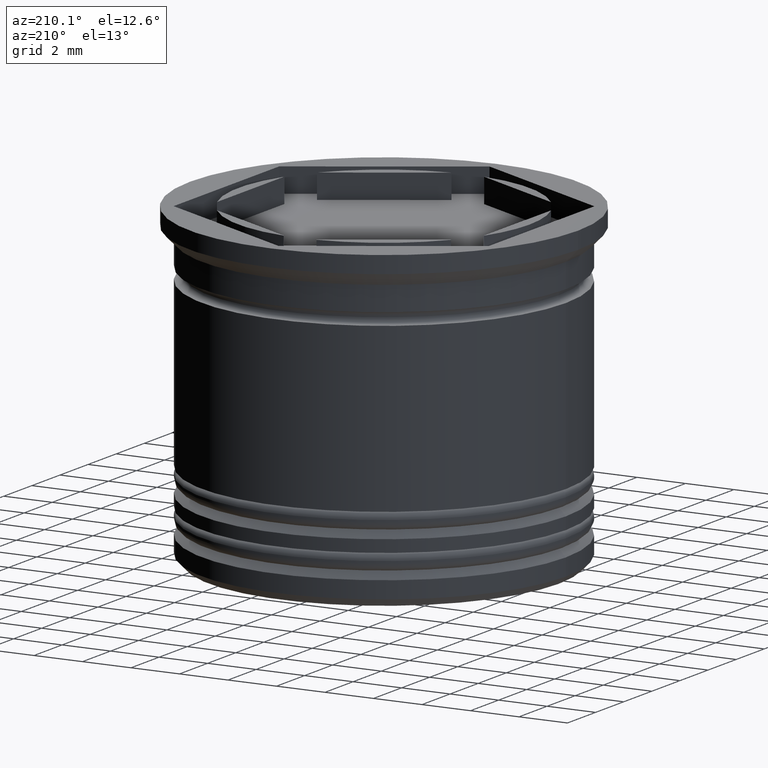
[diagram: clean part render]
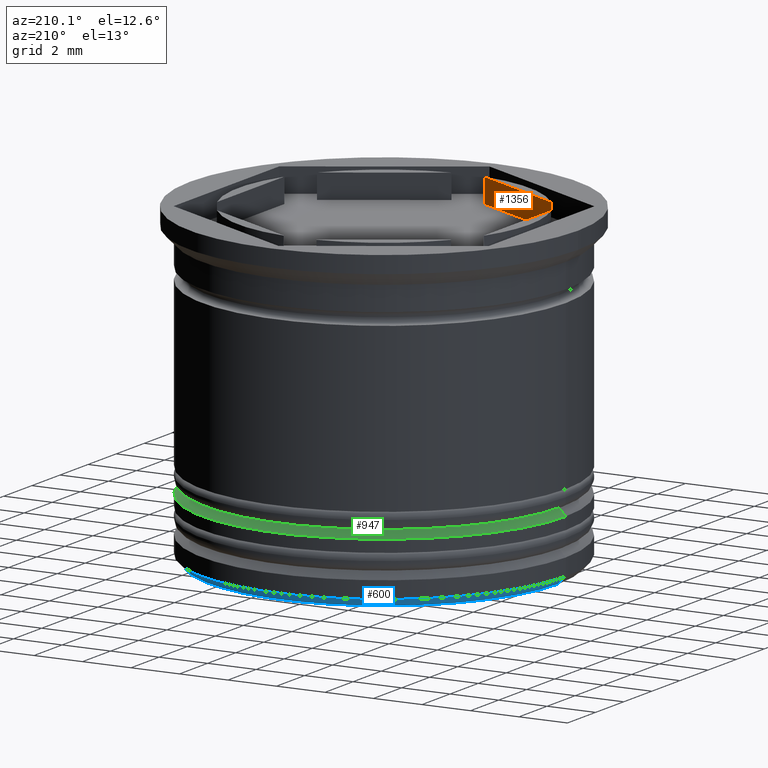
[diagram: same view with three faces highlighted in distinct colors, each labeled with its STEP entity id]
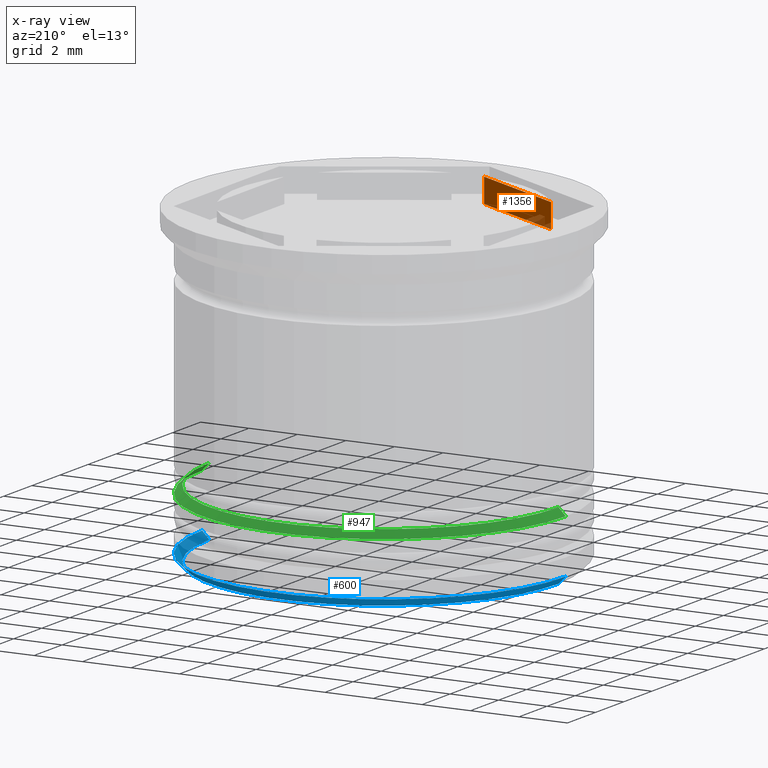
[diagram: x-ray of the same camera — body ghosted, the three highlighted faces saturated]
A machine part, auxiliary view with three faces highlighted in distinct colors.
The next image is the same camera in x-ray (body ghosted, the three faces saturated) — at least one of them is partly hidden behind the body in this view.
Their STEP definitions:

[orange] entity #1356 — the highlighted planar face has unit normal (-0.5, -0.866, 0).
#15 = VECTOR ( 'NONE', #32, 1000.000000000000000 ) ;
#32 = DIRECTION ( 'NONE',  ( 0.000000000000000000, 0.000000000000000000, 1.000000000000000000 ) ) ;
#44 = ORIENTED_EDGE ( 'NONE', *, *, #1899, .F. ) ;
#46 = EDGE_CURVE ( 'NONE', #244, #1669, #163, .T. ) ;
#49 = DIRECTION ( 'NONE',  ( 0.8660254037844385966, -0.5000000000000000000, 0.000000000000000000 ) ) ;
#163 = LINE ( 'NONE', #1252, #1038 ) ;
#192 = ORIENTED_EDGE ( 'NONE', *, *, #46, .T. ) ;
#196 = VECTOR ( 'NONE', #1445, 1000.000000000000000 ) ;
#244 = VERTEX_POINT ( 'NONE', #686 ) ;
#251 = EDGE_LOOP ( 'NONE', ( #192, #980, #1854, #44 ) ) ;
#351 = CARTESIAN_POINT ( 'NONE',  ( -4.826655965729519160, -3.564181839986234390, 16.97056274847714263 ) ) ;
#356 = EDGE_CURVE ( 'NONE', #1936, #1669, #1566, .T. ) ;
#430 = CARTESIAN_POINT ( 'NONE',  ( -5.500000000000001776, -3.175426480542942631, -1.000000000000000888 ) ) ;
#435 = VECTOR ( 'NONE', #853, 999.9999999999998863 ) ;
#498 = LINE ( 'NONE', #351, #196 ) ;
#597 = DIRECTION ( 'NONE',  ( 0.8660254037844387076, -0.5000000000000001110, 0.000000000000000000 ) ) ;
#686 = CARTESIAN_POINT ( 'NONE',  ( -4.826655965729518272, -3.564181839986234834, 0.000000000000000000 ) ) ;
#834 = AXIS2_PLACEMENT_3D ( 'NONE', #1738, #952, #49 ) ;
#853 = DIRECTION ( 'NONE',  ( -0.8660254037844387076, 0.5000000000000001110, 0.000000000000000000 ) ) ;
#952 = DIRECTION ( 'NONE',  ( -0.5000000000000001110, -0.8660254037844387076, 0.000000000000000000 ) ) ;
#980 = ORIENTED_EDGE ( 'NONE', *, *, #356, .F. ) ;
#1038 = VECTOR ( 'NONE', #597, 999.9999999999998863 ) ;
#1097 = CARTESIAN_POINT ( 'NONE',  ( -0.6733440342704841708, -5.962097601642594391, -1.000000000000000888 ) ) ;
#1117 = PLANE ( 'NONE',  #834 ) ;
#1121 = EDGE_CURVE ( 'NONE', #1936, #1770, #1811, .T. ) ;
#1154 = CARTESIAN_POINT ( 'NONE',  ( -4.826655965729519160, -3.564181839986236611, -1.000000000000000888 ) ) ;
#1252 = CARTESIAN_POINT ( 'NONE',  ( -2.750000000000000888, -4.763139720814414169, 0.000000000000000000 ) ) ;
#1266 = CARTESIAN_POINT ( 'NONE',  ( -0.6733440342704825055, -5.962097601642592615, 16.97056274847714263 ) ) ;
#1356 = ADVANCED_FACE ( 'NONE', ( #1599 ), #1117, .F. ) ;
#1445 = DIRECTION ( 'NONE',  ( -0.000000000000000000, -0.000000000000000000, -1.000000000000000000 ) ) ;
#1566 = LINE ( 'NONE', #1266, #15 ) ;
#1599 = FACE_OUTER_BOUND ( 'NONE', #251, .T. ) ;
#1669 = VERTEX_POINT ( 'NONE', #1835 ) ;
#1738 = CARTESIAN_POINT ( 'NONE',  ( -5.500000000000001776, -3.175426480542942631, -17.80277754817141656 ) ) ;
#1770 = VERTEX_POINT ( 'NONE', #1154 ) ;
#1811 = LINE ( 'NONE', #430, #435 ) ;
#1835 = CARTESIAN_POINT ( 'NONE',  ( -0.6733440342704833936, -5.962097601642592615, 0.000000000000000000 ) ) ;
#1854 = ORIENTED_EDGE ( 'NONE', *, *, #1121, .T. ) ;
#1899 = EDGE_CURVE ( 'NONE', #244, #1770, #498, .T. ) ;
#1936 = VERTEX_POINT ( 'NONE', #1097 ) ;

[blue] entity #600 — the highlighted conical surface has half-angle 45 deg.
#37 = CARTESIAN_POINT ( 'NONE',  ( 7.500000000000000888, 0.000000000000000000, -12.70000000000000284 ) ) ;
#43 = CARTESIAN_POINT ( 'NONE',  ( 0.000000000000000000, 0.000000000000000000, -13.00000000000000178 ) ) ;
#61 = DIRECTION ( 'NONE',  ( -0.000000000000000000, -0.000000000000000000, 1.000000000000000000 ) ) ;
#180 = ORIENTED_EDGE ( 'NONE', *, *, #1495, .F. ) ;
#225 = VERTEX_POINT ( 'NONE', #1588 ) ;
#267 = VECTOR ( 'NONE', #1570, 1000.000000000000000 ) ;
#269 = AXIS2_PLACEMENT_3D ( 'NONE', #43, #651, #502 ) ;
#343 = LINE ( 'NONE', #37, #267 ) ;
#366 = CONICAL_SURFACE ( 'NONE', #715, 7.500000000000000888, 0.7853981633974554954 ) ;
#375 = LINE ( 'NONE', #1965, #1908 ) ;
#380 = CARTESIAN_POINT ( 'NONE',  ( 0.000000000000000000, 0.000000000000000000, -12.70000000000000284 ) ) ;
#406 = EDGE_CURVE ( 'NONE', #661, #685, #907, .T. ) ;
#465 = DIRECTION ( 'NONE',  ( 1.000000000000000000, 0.000000000000000000, 0.000000000000000000 ) ) ;
#502 = DIRECTION ( 'NONE',  ( -1.000000000000000000, 0.000000000000000000, 0.000000000000000000 ) ) ;
#525 = EDGE_CURVE ( 'NONE', #661, #1372, #375, .T. ) ;
#567 = DIRECTION ( 'NONE',  ( -0.7071067811865526798, 8.659560562354995721E-17, 0.7071067811865424657 ) ) ;
#600 = ADVANCED_FACE ( 'NONE', ( #767 ), #366, .T. ) ;
#643 = CIRCLE ( 'NONE', #1790, 7.500000000000000888 ) ;
#651 = DIRECTION ( 'NONE',  ( 0.000000000000000000, 0.000000000000000000, -1.000000000000000000 ) ) ;
#661 = VERTEX_POINT ( 'NONE', #1223 ) ;
#685 = VERTEX_POINT ( 'NONE', #901 ) ;
#697 = EDGE_LOOP ( 'NONE', ( #912, #1009, #180, #1168 ) ) ;
#715 = AXIS2_PLACEMENT_3D ( 'NONE', #1410, #1694, #465 ) ;
#767 = FACE_OUTER_BOUND ( 'NONE', #697, .T. ) ;
#901 = CARTESIAN_POINT ( 'NONE',  ( 7.199999999999998401, 0.000000000000000000, -13.00000000000000178 ) ) ;
#907 = CIRCLE ( 'NONE', #269, 7.199999999999998401 ) ;
#912 = ORIENTED_EDGE ( 'NONE', *, *, #406, .F. ) ;
#989 = DIRECTION ( 'NONE',  ( -1.000000000000000000, 0.000000000000000000, 0.000000000000000000 ) ) ;
#1009 = ORIENTED_EDGE ( 'NONE', *, *, #525, .T. ) ;
#1168 = ORIENTED_EDGE ( 'NONE', *, *, #1863, .F. ) ;
#1223 = CARTESIAN_POINT ( 'NONE',  ( -7.199999999999998401, 9.001153973733045617E-16, -13.00000000000000178 ) ) ;
#1372 = VERTEX_POINT ( 'NONE', #1747 ) ;
#1410 = CARTESIAN_POINT ( 'NONE',  ( 0.000000000000000000, 0.000000000000000000, -12.70000000000000284 ) ) ;
#1495 = EDGE_CURVE ( 'NONE', #225, #1372, #643, .T. ) ;
#1570 = DIRECTION ( 'NONE',  ( 0.7071067811865526798, 0.000000000000000000, 0.7071067811865424657 ) ) ;
#1588 = CARTESIAN_POINT ( 'NONE',  ( 7.500000000000000888, 0.000000000000000000, -12.70000000000000284 ) ) ;
#1694 = DIRECTION ( 'NONE',  ( -0.000000000000000000, -0.000000000000000000, 1.000000000000000000 ) ) ;
#1747 = CARTESIAN_POINT ( 'NONE',  ( -7.500000000000000888, 9.184850993605149917E-16, -12.70000000000000284 ) ) ;
#1790 = AXIS2_PLACEMENT_3D ( 'NONE', #380, #61, #989 ) ;
#1863 = EDGE_CURVE ( 'NONE', #685, #225, #343, .T. ) ;
#1908 = VECTOR ( 'NONE', #567, 1000.000000000000000 ) ;
#1965 = CARTESIAN_POINT ( 'NONE',  ( -7.500000000000000888, 9.184850993605149917E-16, -12.70000000000000284 ) ) ;

[green] entity #947 — the highlighted conical surface has half-angle 45 deg.
#85 = ORIENTED_EDGE ( 'NONE', *, *, #794, .F. ) ;
#102 = ORIENTED_EDGE ( 'NONE', *, *, #822, .F. ) ;
#110 = CARTESIAN_POINT ( 'NONE',  ( -6.999999999999992006, 0.000000000000000000, -10.00000000000000000 ) ) ;
#170 = CIRCLE ( 'NONE', #1312, 7.200000000000000178 ) ;
#222 = VERTEX_POINT ( 'NONE', #650 ) ;
#413 = DIRECTION ( 'NONE',  ( -0.000000000000000000, -0.000000000000000000, 1.000000000000000000 ) ) ;
#442 = CARTESIAN_POINT ( 'NONE',  ( 0.000000000000000000, 0.000000000000000000, -10.00000000000000000 ) ) ;
#519 = LINE ( 'NONE', #1761, #1978 ) ;
#547 = CONICAL_SURFACE ( 'NONE', #1135, 6.999999999999992006, 0.7853981633974533860 ) ;
#564 = CARTESIAN_POINT ( 'NONE',  ( 0.000000000000000000, 0.000000000000000000, -10.20000000000000639 ) ) ;
#614 = AXIS2_PLACEMENT_3D ( 'NONE', #1419, #1453, #1888 ) ;
#650 = CARTESIAN_POINT ( 'NONE',  ( 7.200000000000000178, 0.000000000000000000, -10.20000000000000639 ) ) ;
#652 = ORIENTED_EDGE ( 'NONE', *, *, #1887, .F. ) ;
#717 = ORIENTED_EDGE ( 'NONE', *, *, #1384, .T. ) ;
#794 = EDGE_CURVE ( 'NONE', #1727, #926, #846, .T. ) ;
#822 = EDGE_CURVE ( 'NONE', #222, #1727, #170, .T. ) ;
#846 = LINE ( 'NONE', #110, #1794 ) ;
#858 = DIRECTION ( 'NONE',  ( -1.000000000000000000, 0.000000000000000000, 0.000000000000000000 ) ) ;
#913 = FACE_OUTER_BOUND ( 'NONE', #1904, .T. ) ;
#926 = VERTEX_POINT ( 'NONE', #1114 ) ;
#947 = ADVANCED_FACE ( 'NONE', ( #913 ), #547, .T. ) ;
#979 = DIRECTION ( 'NONE',  ( 0.7071067811865512365, 8.659560562354978464E-17, -0.7071067811865439090 ) ) ;
#1057 = DIRECTION ( 'NONE',  ( -1.000000000000000000, 0.000000000000000000, 0.000000000000000000 ) ) ;
#1114 = CARTESIAN_POINT ( 'NONE',  ( -7.500000000000001776, 9.184850993605149917E-16, -10.50000000000000355 ) ) ;
#1135 = AXIS2_PLACEMENT_3D ( 'NONE', #442, #1241, #1057 ) ;
#1165 = CARTESIAN_POINT ( 'NONE',  ( -7.200000000000000178, 8.817456953860942303E-16, -10.20000000000000639 ) ) ;
#1241 = DIRECTION ( 'NONE',  ( 0.000000000000000000, 0.000000000000000000, -1.000000000000000000 ) ) ;
#1312 = AXIS2_PLACEMENT_3D ( 'NONE', #564, #413, #858 ) ;
#1384 = EDGE_CURVE ( 'NONE', #222, #1642, #519, .T. ) ;
#1419 = CARTESIAN_POINT ( 'NONE',  ( 0.000000000000000000, 0.000000000000000000, -10.50000000000000355 ) ) ;
#1453 = DIRECTION ( 'NONE',  ( 0.000000000000000000, 0.000000000000000000, -1.000000000000000000 ) ) ;
#1474 = CIRCLE ( 'NONE', #614, 7.500000000000001776 ) ;
#1642 = VERTEX_POINT ( 'NONE', #1657 ) ;
#1657 = CARTESIAN_POINT ( 'NONE',  ( 7.500000000000001776, 0.000000000000000000, -10.50000000000000355 ) ) ;
#1727 = VERTEX_POINT ( 'NONE', #1165 ) ;
#1761 = CARTESIAN_POINT ( 'NONE',  ( 6.999999999999992006, 8.572527594031463329E-16, -10.00000000000000000 ) ) ;
#1769 = DIRECTION ( 'NONE',  ( -0.7071067811865512365, 0.000000000000000000, -0.7071067811865439090 ) ) ;
#1794 = VECTOR ( 'NONE', #1769, 1000.000000000000000 ) ;
#1887 = EDGE_CURVE ( 'NONE', #926, #1642, #1474, .T. ) ;
#1888 = DIRECTION ( 'NONE',  ( -1.000000000000000000, 0.000000000000000000, 0.000000000000000000 ) ) ;
#1904 = EDGE_LOOP ( 'NONE', ( #102, #717, #652, #85 ) ) ;
#1978 = VECTOR ( 'NONE', #979, 1000.000000000000000 ) ;